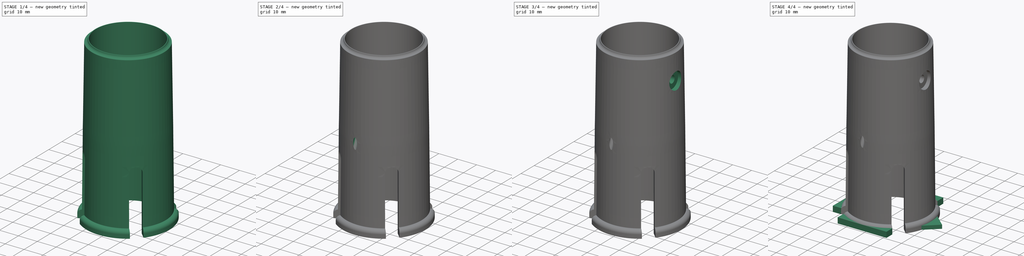
[diagram: build sequence overview — one tinted view per stage of 4, left to right]
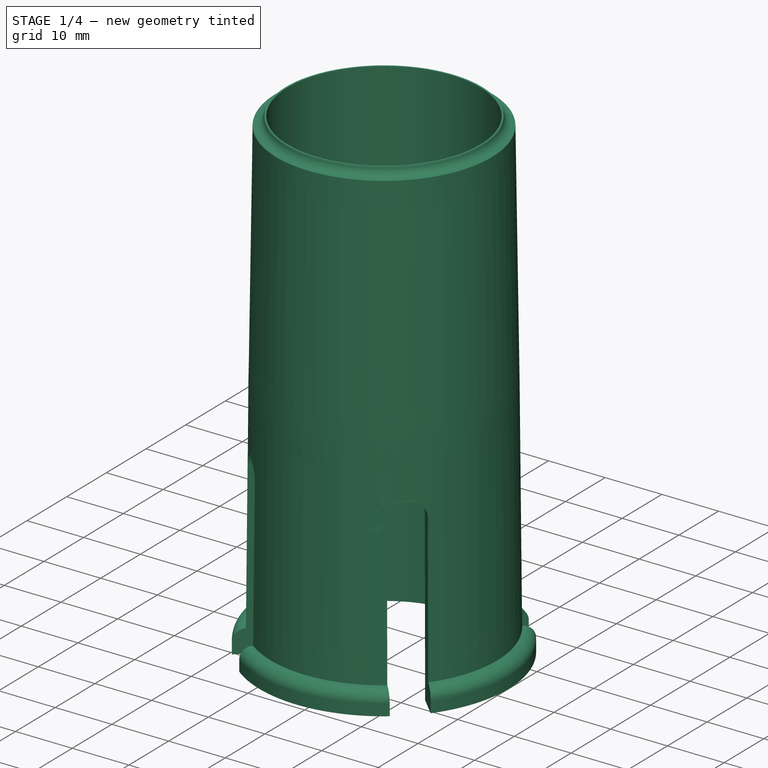
[diagram: stage 1 of 4 — iso view after this stage's code; geometry added in this stage tinted green]
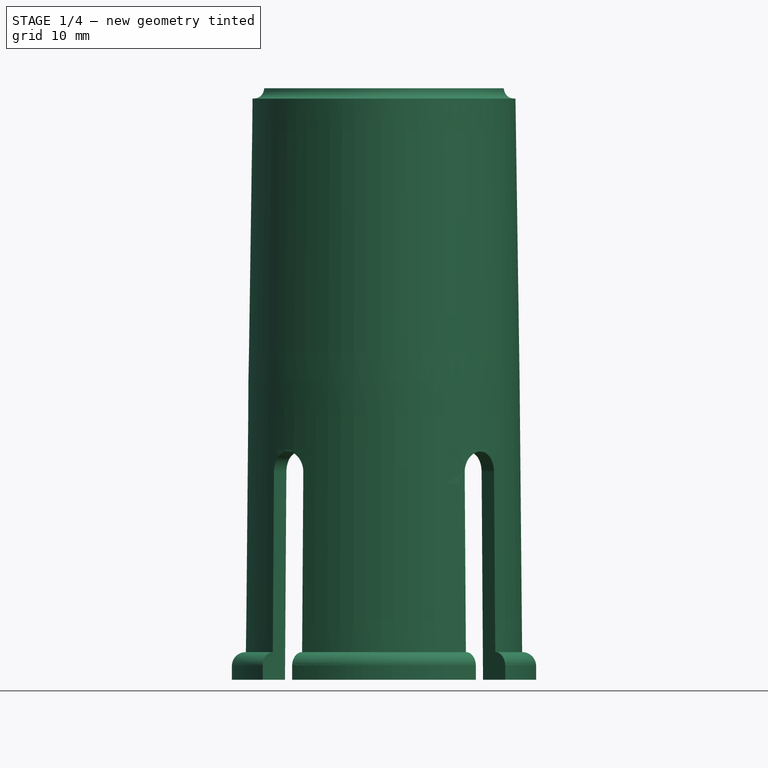
[diagram: stage 1 of 4 — front view after this stage's code; geometry added in this stage tinted green]
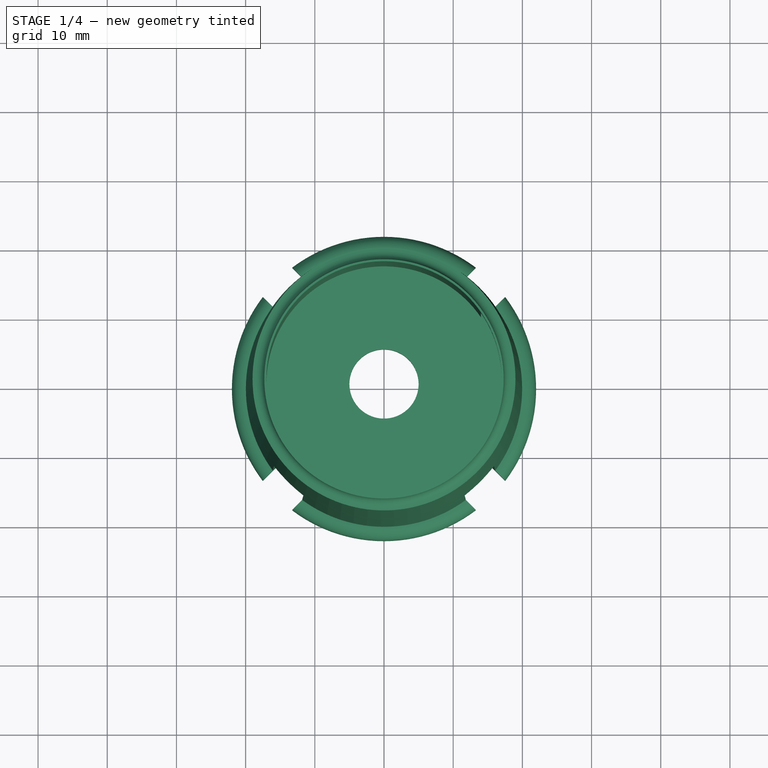
[diagram: stage 1 of 4 — top view after this stage's code; geometry added in this stage tinted green]
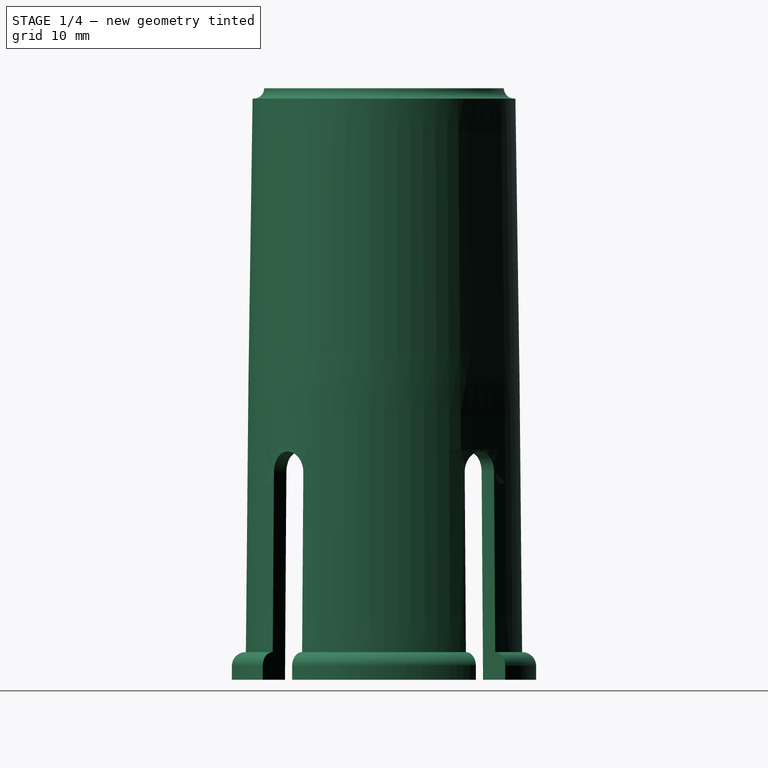
[diagram: stage 1 of 4 — right view after this stage's code; geometry added in this stage tinted green]
FCSTD DOCUMENT  (FreeCAD 1.0R38641 +678 (Git))
Label: 8-mast-mount
License: All rights reserved
LicenseURL: http://en.wikipedia.org/wiki/All_rights_reserved
objects: Sketcher::SketchObject×12, PartDesign::Pocket×7, PartDesign::Pad×4, PartDesign::Fillet×2, PartDesign::Plane×1, PartDesign::Revolution×1, PartDesign::Body×1
note: 68 computed .brp shape members not serialized (recipe doc carries the construction recipe); baked Part::Feature solids carry a one-line shape summary decoded from their .brp

FEATURE [PartDesign::Plane] DatumPlane014
  AttachmentOffset = pos=(0,0,43) rot=(0,0,1;0rad)
  AttachmentSupport = -> [XY_Plane028]
  Length = 63.2956
  MapMode = 5
  Placement = pos=(0,0,43) rot=(0,0,1;0rad)
  ResizeMode = 0
  Width = 60.2956
FEATURE [Sketcher::SketchObject] Sketch102
  ArcFitTolerance = 1e-06
  AttachmentSupport = -> [XZ_Plane028]
  FullyConstrained = true
  MakeInternals = false
  MapMode = 5
  Placement = pos=(0,0,0) rot=(1,0,0;1.5708rad)
  sketch-geometry (29):
    g0: LineSegment StartX=17.2 StartY=32 StartZ=0 EndX=17.5 EndY=0 EndZ=0
    g1: LineSegment StartX=19.6 StartY=43 StartZ=0 EndX=19.9628 EndY=3.99983 EndZ=0
    g2: LineSegment [constr] StartX=19.9628 StartY=3.99983 StartZ=0 EndX=20 EndY=0 EndZ=0
    g3: LineSegment StartX=5 StartY=40 StartZ=0 EndX=5 EndY=43 EndZ=0
    g4: LineSegment StartX=5 StartY=43 StartZ=0 EndX=17 EndY=43 EndZ=0
    g5: LineSegment [constr] StartX=17 StartY=43 StartZ=0 EndX=19.6 EndY=43 EndZ=0
    g6: LineSegment StartX=17 StartY=43 StartZ=0 EndX=17 EndY=83.9956 EndZ=0
    g7: LineSegment StartX=17.5 StartY=0 StartZ=0 EndX=20 EndY=0 EndZ=0
    g8: LineSegment [constr] StartX=17 StartY=83.9956 StartZ=0 EndX=19 EndY=83.9956 EndZ=0
    g9: LineSegment StartX=19.6 StartY=43 StartZ=0 EndX=19 EndY=83.9956 EndZ=0
    g10-g13: Circle [constr] x4 (B-spline internal-alignment scaffolding for g14; pole/knot coordinates omitted)
    g14: BSplineCurve PolesCount=4 KnotsCount=2 Degree=3 IsPeriodic=0
    g15: GeomPoint [constr] X=17.2 Y=32 Z=0
    g16: GeomPoint [constr] X=5 Y=40 Z=0
    g17: LineSegment StartX=17 StartY=83.9956 StartZ=0 EndX=17 EndY=85.4956 EndZ=0
    g18: LineSegment StartX=17 StartY=85.4956 StartZ=0 EndX=17.3 EndY=85.4956 EndZ=0
    g19: Circle [constr] CenterX=17.3 CenterY=85.4956 CenterZ=0 NormalX=0 NormalY=0 NormalZ=1 AngleXU=0 Radius=1
    g20: Circle [constr] CenterX=17.5 CenterY=83.9956 CenterZ=0 NormalX=0 NormalY=0 NormalZ=1 AngleXU=0 Radius=1
    g21: Circle [constr] CenterX=19 CenterY=83.9956 CenterZ=0 NormalX=0 NormalY=0 NormalZ=1 AngleXU=0 Radius=1
    g22: BSplineCurve PolesCount=3 KnotsCount=2 Degree=2 IsPeriodic=0
    g23: GeomPoint [constr] X=17.3 Y=85.4956 Z=0
    g24: GeomPoint [constr] X=19 Y=83.9956 Z=0
    g25: ArcOfCircle CenterX=19.9814 CenterY=1.99991 CenterZ=0 NormalX=0 NormalY=0 NormalZ=1 AngleXU=0 Radius=2 StartAngle=0 EndAngle=1.5801
    g26: LineSegment [constr] StartX=19.9814 StartY=1.99991 StartZ=0 EndX=21.9814 EndY=1.99991 EndZ=0
    g27: LineSegment StartX=20 StartY=0 StartZ=0 EndX=21.9814 EndY=0 EndZ=0
    g28: LineSegment StartX=21.9814 StartY=0 StartZ=0 EndX=21.9814 EndY=1.99991 EndZ=0
  constraints (71):
    c: PointOnObject(g2,g-1)
    c: Distance(g2,g-1) = 20
    c: PointOnObject(g0,g-1)
    c: Coincident(g1,g2)
    c: Coincident(g1,g25)
    c: Parallel(g1,g2)
    c: Vertical(g3)
    c: Coincident(g4,g3)
    c: Coincident(g5,g4)
    c: Coincident(g5,g1)
    c: Horizontal(g5)
    c: Horizontal(g4)
    c: Coincident(g6,g4)
    c: Vertical(g6)
    c: Distance(g9,g1) = 41
    c: Distance(g3,g3) = 3
    c: DistanceX(g-1,g3) = 5
    c: Distance(g3,g-1) = 40
    c: Coincident(g7,g0)
    c: Coincident(g7,g2)
    c: Coincident(g8,g6)
    c: Horizontal(g8)
    c: Coincident(g9,g1)
    c: Weight(g10) = 1
    c: Equal(g10,g11)
    c: Equal(g10,g12)
    c: Equal(g10,g13)
    c: InternalAlignment(g10-g13 -> g14) x4
    c: InternalAlignment(g15,g14)
    c: InternalAlignment(g16,g14)
    c: Coincident(g10,g0)
    c: Coincident(g13,g3)
    c: Distance(g14,g-1) = 32
    c: DistanceX(g12) = 10.886
    c: DistanceY(g12) = 39.5085
    c: DistanceX(g11) = 17
    c: DistanceY(g11) = 35.5277
    c: Vertical(g17)
    c: Coincident(g17,g6)
    c: Distance(g17,g17) = 1.5
    c: Coincident(g8,g9)
    c: Coincident(g18,g17)
    c: Horizontal(g18)
    c: Distance(g18,g18) = 0.3
    c: Weight(g19) = 1
    c: Equal(g19,g20)
    c: Equal(g19,g21)
    c: InternalAlignment(g19,g22)
    c: InternalAlignment(g20,g22)
    c: InternalAlignment(g21,g22)
    c: InternalAlignment(g23,g22)
    c: InternalAlignment(g24,g22)
    c: Coincident(g19,g18)
    c: Coincident(g21,g8)
    c: PointOnObject(g20,g8)
    c: Distance(g6,g20) = 0.5
    c: Symmetric(g2,g2,g26)
    c: Horizontal(g26)
    c: Coincident(g27,g2)
    c: Horizontal(g27)
    c: Coincident(g28,g27)
    c: Coincident(g28,g25)
    c: Vertical(g28)
    c: Coincident(g25,g26)
    c: Coincident(g26,g25)
    c: Radius(g25) = 2
    c: Distance(g14,g-2) = 17.2
    c: DistanceX(g8,g8) = 2
    c: Distance(g0,g-2) = 17.5
    c: Distance(g1,g-2) = 19.6
    c: Distance(g4,g-2) = 17
FEATURE [PartDesign::Revolution] Revolution020  label="Revolution-Main"
  Angle = 360
  Angle2 = 60
  Axis = (0,2e-16,1)
  Base = (0,0,0)
  Placement = pos=(0,0,0) rot=(1,0,0;1.5708rad)
  Profile = -> Sketch102
  ReferenceAxis = -> Sketch102 [V_Axis]
  Reversed = true
  Suppressed = false
  Type = 0
FEATURE [Sketcher::SketchObject] Sketch103
  ArcFitTolerance = 1e-06
  AttachmentOffset = pos=(0,0,0) rot=(0,1,0;0.785398rad)
  AttachmentSupport = -> [YZ_Plane028]
  FullyConstrained = true
  MakeInternals = false
  MapMode = 5
  Placement = pos=(0,0,0) rot=(0.281085,0.678598,0.678598;2.59356rad)
  sketch-geometry (7):
    g0: LineSegment StartX=-3 StartY=30 StartZ=0 EndX=-3 EndY=0 EndZ=0
    g1: LineSegment StartX=3 StartY=30 StartZ=0 EndX=3 EndY=0 EndZ=0
    g2: LineSegment StartX=-3 StartY=0 StartZ=0 EndX=0 EndY=0 EndZ=0
    g3: LineSegment StartX=0 StartY=0 StartZ=0 EndX=3 EndY=0 EndZ=0
    g4: ArcOfCircle CenterX=-1e-16 CenterY=30 CenterZ=0 NormalX=0 NormalY=0 NormalZ=1 AngleXU=0 Radius=3 StartAngle=3e-16 EndAngle=3.14159
    g5: LineSegment [constr] StartX=-1e-16 StartY=30 StartZ=0 EndX=3 EndY=30 EndZ=0
    g6: LineSegment [constr] StartX=-1e-16 StartY=30 StartZ=0 EndX=-3 EndY=30 EndZ=0
  constraints (19):
    c: PointOnObject(g0,g-1)
    c: Vertical(g0)
    c: PointOnObject(g1,g-1)
    c: Vertical(g1)
    c: DistanceY(g1,g1) = 30
    c: Coincident(g2,g0)
    c: Coincident(g2,g-1)
    c: Coincident(g3,g2)
    c: Coincident(g3,g1)
    c: Equal(g3,g2)
    c: Coincident(g4,g1)
    c: Coincident(g4,g0)
    c: Radius(g4) = 3
    c: Coincident(g5,g4)
    c: Coincident(g5,g1)
    c: Horizontal(g5)
    c: Coincident(g6,g4)
    c: Coincident(g6,g0)
    c: Horizontal(g6)
FEATURE [PartDesign::Pocket] Pocket023  label="Pocket-Arch-1"
  BaseFeature = -> Revolution020
  Direction = (-0.707107,-0.707107,0)
  Length = 5
  Length2 = 5
  Midplane = true
  Placement = pos=(0,0,0) rot=(1,0,0;1.5708rad)
  Profile = -> Sketch103
  ReferenceAxis = -> Sketch103 [N_Axis]
  Suppressed = false
  Type = 1
FEATURE [Sketcher::SketchObject] Sketch104
  ArcFitTolerance = 1e-06
  AttachmentOffset = pos=(0,0,0) rot=(0,1,0;0.785398rad)
  AttachmentSupport = -> [XZ_Plane028]
  FullyConstrained = true
  MakeInternals = false
  MapMode = 5
  Placement = pos=(0,0,0) rot=(0.862856,0.357407,0.357407;1.71777rad)
  expr: Constraints[12] = Sketch103.Constraints[12]
  expr: Constraints[4] = Sketch103.Constraints[4]
  sketch-geometry (7):
    g0: LineSegment StartX=-3 StartY=30 StartZ=0 EndX=-3 EndY=0 EndZ=0
    g1: LineSegment StartX=3 StartY=30 StartZ=0 EndX=3 EndY=0 EndZ=0
    g2: LineSegment StartX=-3 StartY=0 StartZ=0 EndX=0 EndY=0 EndZ=0
    g3: LineSegment StartX=0 StartY=0 StartZ=0 EndX=3 EndY=0 EndZ=0
    g4: ArcOfCircle CenterX=-1e-16 CenterY=30 CenterZ=0 NormalX=0 NormalY=0 NormalZ=1 AngleXU=0 Radius=3 StartAngle=3e-16 EndAngle=3.14159
    g5: LineSegment [constr] StartX=-1e-16 StartY=30 StartZ=0 EndX=3 EndY=30 EndZ=0
    g6: LineSegment [constr] StartX=-1e-16 StartY=30 StartZ=0 EndX=-3 EndY=30 EndZ=0
  constraints (19):
    c: PointOnObject(g0,g-1)
    c: Vertical(g0)
    c: PointOnObject(g1,g-1)
    c: Vertical(g1)
    c: DistanceY(g1,g1) = 30
    c: Coincident(g2,g0)
    c: Coincident(g2,g-1)
    c: Coincident(g3,g2)
    c: Coincident(g3,g1)
    c: Equal(g3,g2)
    c: Coincident(g4,g1)
    c: Coincident(g4,g0)
    c: Radius(g4) = 3
    c: Coincident(g5,g4)
    c: Coincident(g5,g1)
    c: Horizontal(g5)
    c: Coincident(g6,g4)
    c: Coincident(g6,g0)
    c: Horizontal(g6)
FEATURE [PartDesign::Pocket] Pocket024  label="Pocket-Arch-2"
  BaseFeature = -> Pocket023
  Direction = (-0.707107,0.707107,-1e-16)
  Length = 5
  Length2 = 5
  Midplane = true
  Placement = pos=(0,0,0) rot=(1,0,0;1.5708rad)
  Profile = -> Sketch104
  ReferenceAxis = -> Sketch104 [N_Axis]
  Suppressed = false
  Type = 1
FEATURE [Sketcher::SketchObject] Sketch141
  ArcFitTolerance = 1e-06
  AttachmentOffset = pos=(0,0,0) rot=(0,0,1;3.14159rad)
  AttachmentSupport = -> [DatumPlane014]
  FullyConstrained = true
  MakeInternals = false
  MapMode = 5
  Placement = pos=(0,0,43) rot=(0,0,1;3.14159rad)
  sketch-geometry (4):
    g0: LineSegment [constr] StartX=0 StartY=0 StartZ=0 EndX=-14 EndY=0 EndZ=0
    g1: LineSegment StartX=-14 StartY=0 StartZ=0 EndX=-14 EndY=12.8452 EndZ=0
    g2: LineSegment StartX=-14 StartY=0 StartZ=0 EndX=-14 EndY=-12.8452 EndZ=0
    g3: ArcOfCircle CenterX=0 CenterY=0 CenterZ=0 NormalX=0 NormalY=0 NormalZ=1 AngleXU=0 Radius=19 StartAngle=2.39918 EndAngle=3.884
  constraints (11):
    c: Distance(g0) = 14
    c: Coincident(g0,g-1)
    c: PointOnObject(g0,g-1)
    c: Coincident(g1,g0)
    c: Vertical(g1)
    c: Coincident(g2,g0)
    c: Vertical(g2)
    c: Coincident(g3,g0)
    c: Coincident(g3,g1)
    c: Coincident(g3,g2)
    c: Radius(g3) = 19
FEATURE [PartDesign::Pad] Pad  label="Pad-Keying"
  BaseFeature = -> Pocket024
  Direction = (0,0,1)
  Length = 36
  Length2 = 10
  Placement = pos=(0,0,0) rot=(1,0,0;1.5708rad)
  Profile = -> Sketch141
  ReferenceAxis = -> Sketch141 [N_Axis]
  Suppressed = false
  Type = 0
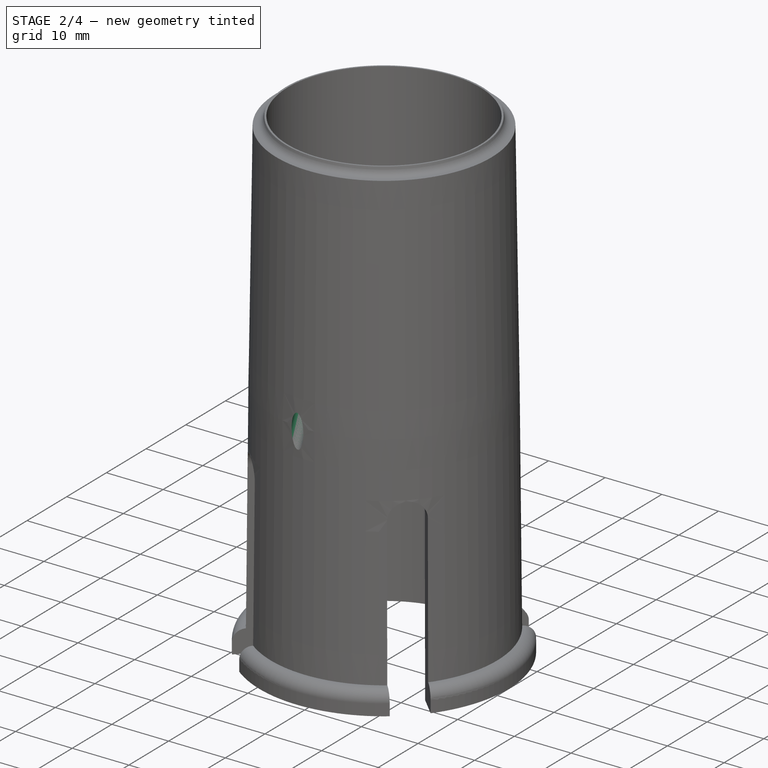
[diagram: stage 2 of 4 — iso view after this stage's code; geometry added in this stage tinted green]
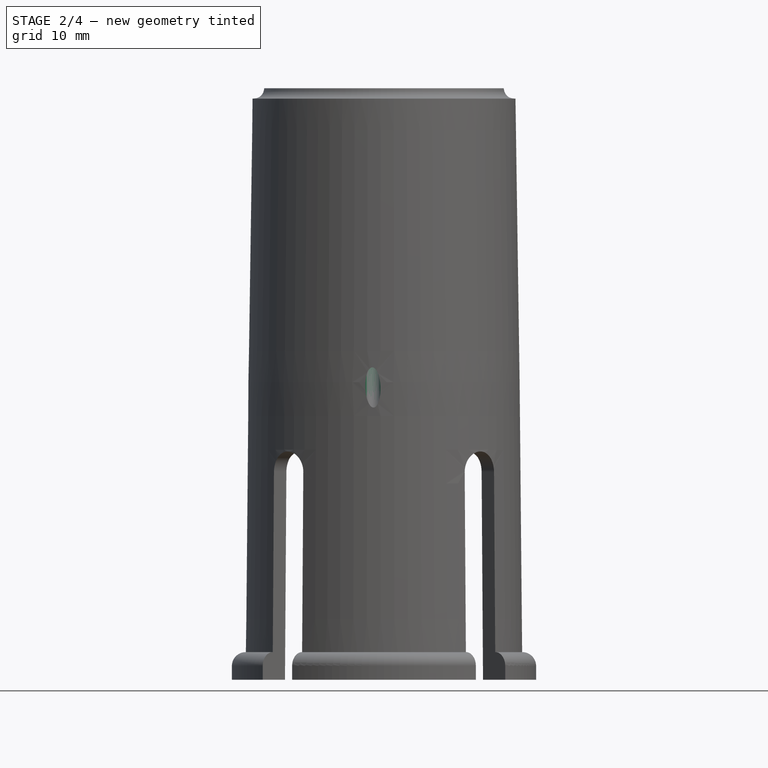
[diagram: stage 2 of 4 — front view after this stage's code; geometry added in this stage tinted green]
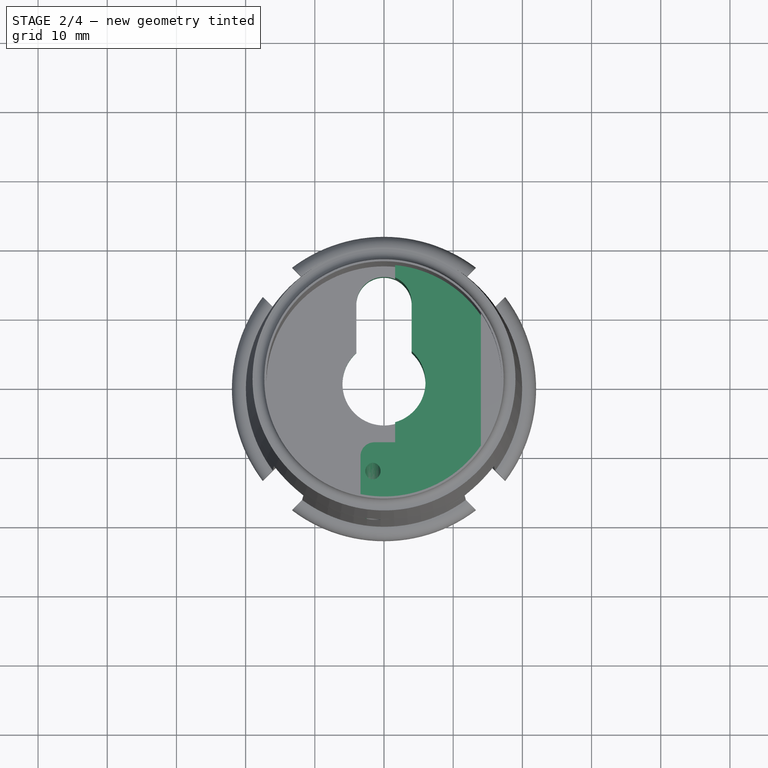
[diagram: stage 2 of 4 — top view after this stage's code; geometry added in this stage tinted green]
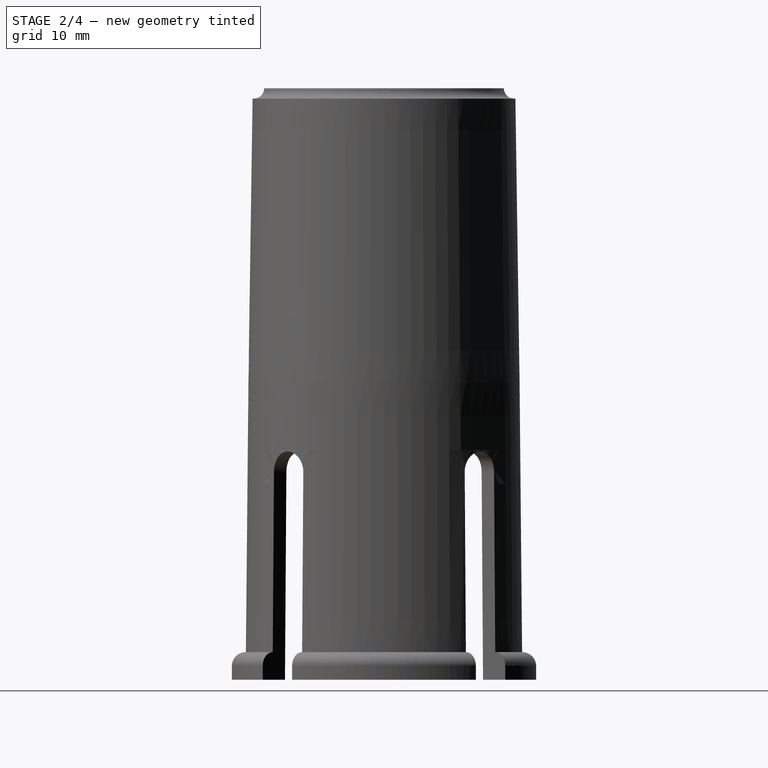
[diagram: stage 2 of 4 — right view after this stage's code; geometry added in this stage tinted green]
FEATURE [Sketcher::SketchObject] Sketch142
  ArcFitTolerance = 1e-06
  AttachmentOffset = pos=(0,0,0) rot=(0,0,1;3.14159rad)
  AttachmentSupport = -> [DatumPlane014]
  FullyConstrained = true
  MakeInternals = false
  MapMode = 5
  Placement = pos=(0,0,43) rot=(0,0,1;3.14159rad)
  sketch-geometry (6):
    g0: ArcOfCircle CenterX=0 CenterY=0 CenterZ=0 NormalX=0 NormalY=0 NormalZ=1 AngleXU=0 Radius=19 StartAngle=1.39088 EndAngle=4.62808
    g1: LineSegment StartX=-1.6 StartY=8.69331 StartZ=0 EndX=1.4 EndY=8.69331 EndZ=0
    g2: LineSegment StartX=3.4 StartY=10.6933 StartZ=0 EndX=3.4 EndY=18.6933 EndZ=0
    g3: LineSegment StartX=-1.6 StartY=8.69331 StartZ=0 EndX=-1.6 EndY=-18.9325 EndZ=0
    g4: ArcOfCircle CenterX=1.4 CenterY=10.6933 CenterZ=0 NormalX=0 NormalY=0 NormalZ=1 AngleXU=0 Radius=2 StartAngle=4.71239 EndAngle=6.28319
    g5: GeomPoint [constr] X=3.4 Y=8.69331 Z=0
  constraints (16):
    c: Coincident(g0,g-1)
    c: Radius(g0) = 19
    c: Coincident(g1,g3)
    c: Horizontal(g1)
    c: Vertical(g2)
    c: Coincident(g0,g2)
    c: Distance(g1,g5) = 5
    c: DistanceY(g5,g2) = 10
    c: Vertical(g3)
    c: Distance(g3,g-2) = 1.6
    c: PointOnObject(g5,g1)
    c: PointOnObject(g5,g2)
    c: Tangent(g1,g4) = -1.5708
    c: Tangent(g2,g4) = -1.5708
    c: Radius(g4) = 2
    c: Coincident(g3,g0)
FEATURE [PartDesign::Pad] Pad017  label="Pad-Internal filling"
  BaseFeature = -> Pad
  Direction = (0,0,1)
  Length = 15
  Length2 = 10
  Placement = pos=(0,0,0) rot=(1,0,0;1.5708rad)
  Profile = -> Sketch142
  ReferenceAxis = -> Sketch142 [N_Axis]
  Suppressed = false
  Type = 0
FEATURE [Sketcher::SketchObject] Sketch146
  ArcFitTolerance = 1e-06
  AttachmentOffset = pos=(-1.6,-12,17) rot=(1,0,0;-0.401426rad)
  AttachmentSupport = -> [DatumPlane014]
  FullyConstrained = true
  MakeInternals = false
  MapMode = 5
  Placement = pos=(-1.6,-12,60) rot=(1,0,0;5.88176rad)
  sketch-geometry (1):
    g0: Circle CenterX=0 CenterY=0 CenterZ=0 NormalX=0 NormalY=0 NormalZ=1 AngleXU=0 Radius=1.1
  constraints (2):
    c: Diameter(g0) = 2.2
    c: Coincident(g0,g-1)
FEATURE [PartDesign::Pocket] Pocket047  label="Pocket-Switch Conduit"
  BaseFeature = -> Pad017
  Direction = (0,-0.390731,-0.920505)
  Length = 5
  Length2 = 5
  Placement = pos=(0,0,0) rot=(1,0,0;1.5708rad)
  Profile = -> Sketch146
  ReferenceAxis = -> Sketch146 [N_Axis]
  Suppressed = false
  Type = 1
FEATURE [Sketcher::SketchObject] Sketch147
  ArcFitTolerance = 1e-06
  AttachmentSupport = -> [DatumPlane014]
  FullyConstrained = true
  MakeInternals = false
  MapMode = 5
  Placement = pos=(0,0,43) rot=(0,0,1;0rad)
  sketch-geometry (6):
    g0: ArcOfCircle CenterX=0 CenterY=0 CenterZ=0 NormalX=0 NormalY=0 NormalZ=1 AngleXU=0 Radius=6 StartAngle=2.30052 EndAngle=7.12425
    g1: LineSegment StartX=-4 StartY=4.47214 StartZ=0 EndX=-4 EndY=11.4721 EndZ=0
    g2: LineSegment StartX=4 StartY=4.47214 StartZ=0 EndX=4 EndY=11.4721 EndZ=0
    g3: ArcOfCircle CenterX=0 CenterY=11.4721 CenterZ=0 NormalX=0 NormalY=0 NormalZ=1 AngleXU=0 Radius=4 StartAngle=0 EndAngle=3.14159
    g4: LineSegment [constr] StartX=-4 StartY=11.4721 StartZ=0 EndX=0 EndY=11.4721 EndZ=0
    g5: LineSegment [constr] StartX=0 StartY=11.4721 StartZ=0 EndX=4 EndY=11.4721 EndZ=0
  constraints (17):
    c: Radius(g0) = 6
    c: Coincident(g1,g0)
    c: Vertical(g1)
    c: Coincident(g2,g0)
    c: Vertical(g2)
    c: Coincident(g3,g2)
    c: Coincident(g4,g3)
    c: Coincident(g4,g3)
    c: Horizontal(g4)
    c: Coincident(g5,g3)
    c: Coincident(g5,g2)
    c: Horizontal(g5)
    c: Coincident(g1,g3)
    c: Coincident(g-1,g0)
    c: DistanceY(g1,g1) = 7
    c: DistanceX(g1,g2) = 8
    c: PointOnObject(g3,g-2)
FEATURE [PartDesign::Pocket] Pocket048  label="Pocket-Wiring/USB passthrough"
  BaseFeature = -> Pocket047
  Direction = (0,0,-1)
  Length = 32
  Length2 = 5
  Midplane = true
  Placement = pos=(0,0,0) rot=(1,0,0;1.5708rad)
  Profile = -> Sketch147
  ReferenceAxis = -> Sketch147 [N_Axis]
  Suppressed = false
  Type = 0
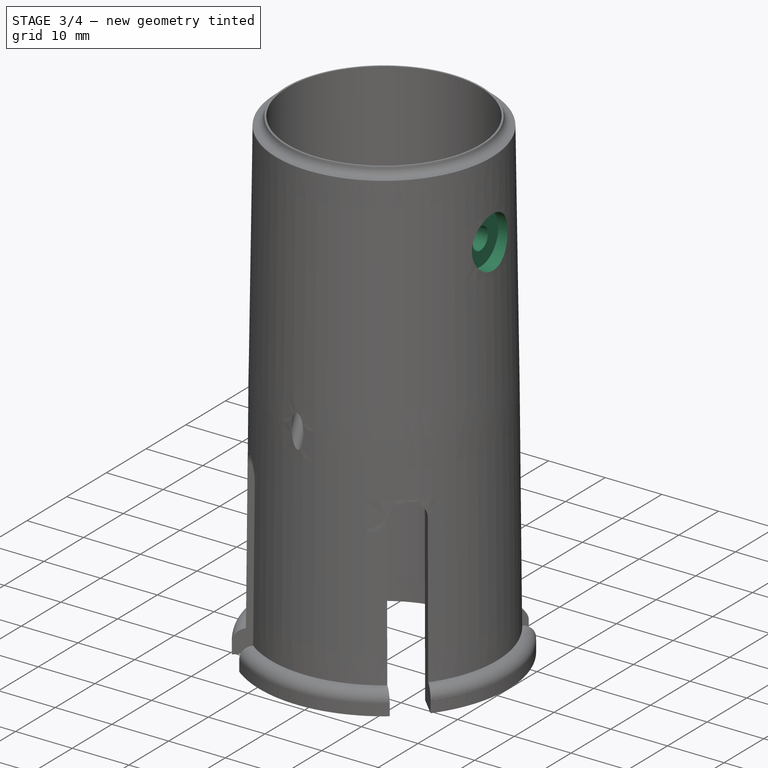
[diagram: stage 3 of 4 — iso view after this stage's code; geometry added in this stage tinted green]
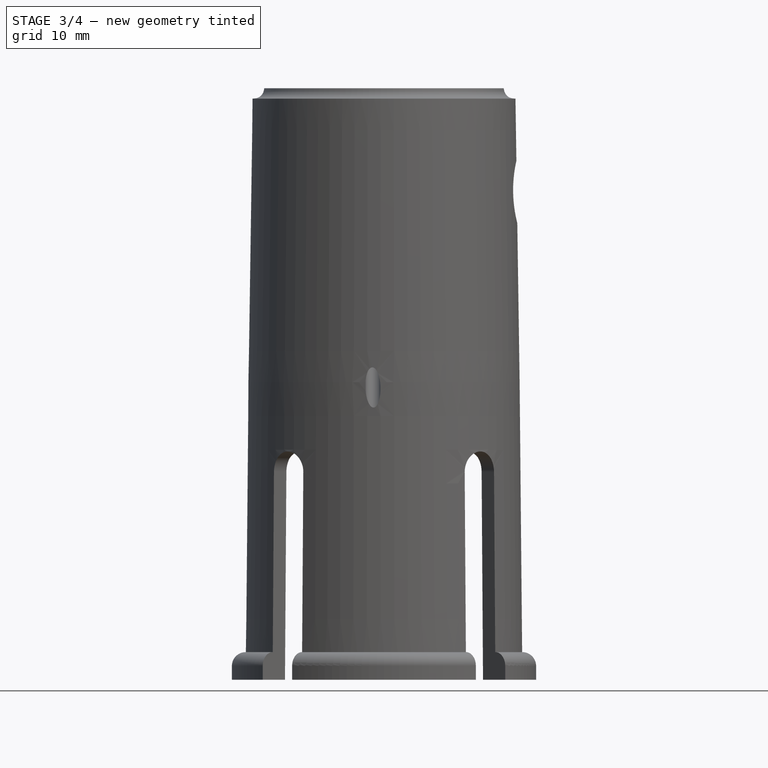
[diagram: stage 3 of 4 — front view after this stage's code; geometry added in this stage tinted green]
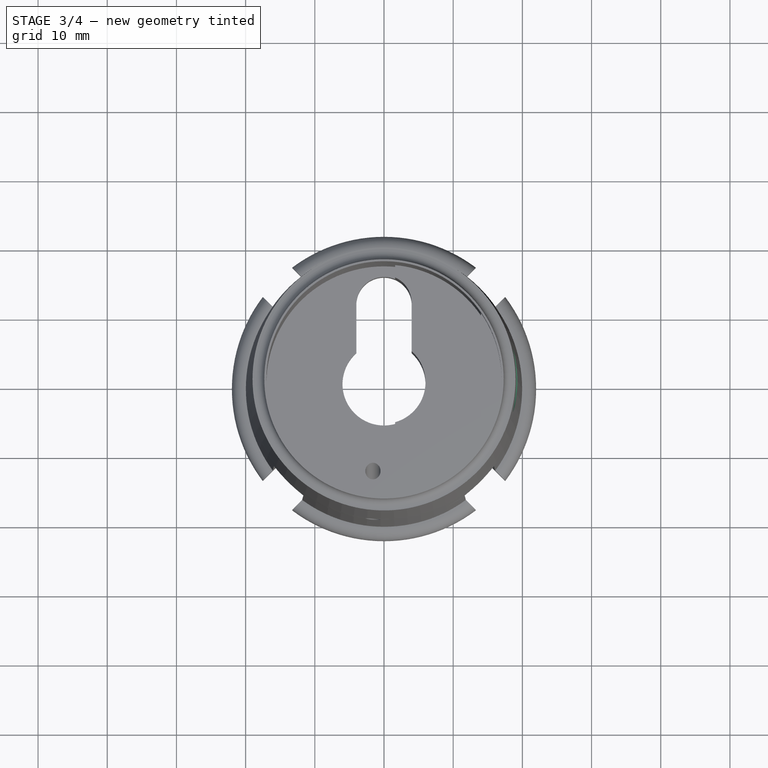
[diagram: stage 3 of 4 — top view after this stage's code; geometry added in this stage tinted green]
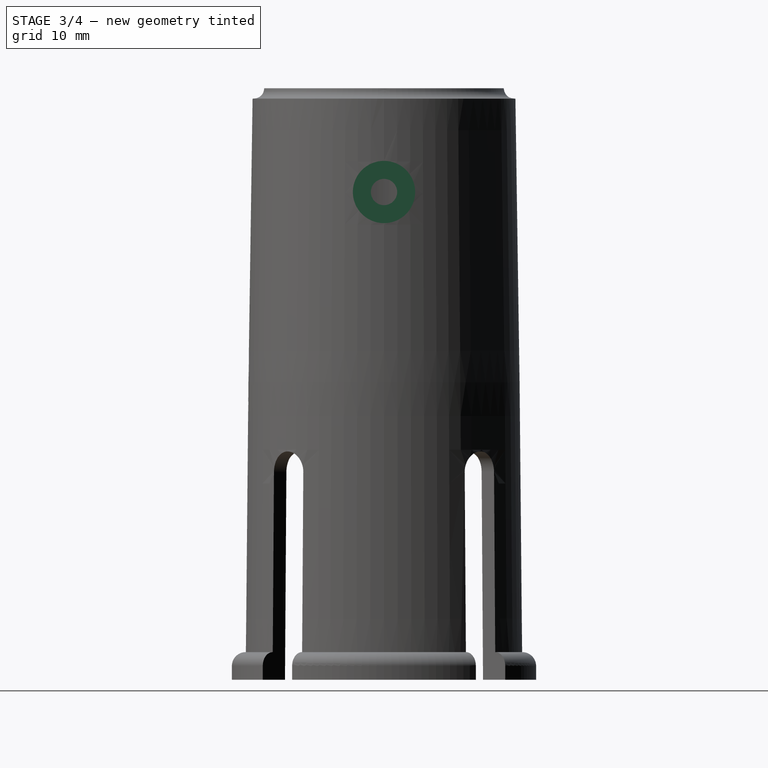
[diagram: stage 3 of 4 — right view after this stage's code; geometry added in this stage tinted green]
FEATURE [Sketcher::SketchObject] Sketch148
  ArcFitTolerance = 1e-06
  AttachmentOffset = pos=(0,0,20) rot=(0,0,1;0rad)
  AttachmentSupport = -> [YZ_Plane028]
  ExternalGeometry = -> [Pocket048]
  FullyConstrained = true
  MakeInternals = false
  MapMode = 5
  Placement = pos=(20,0,0) rot=(0.57735,0.57735,0.57735;2.0944rad)
  sketch-geometry (1):
    g0: Circle CenterX=0 CenterY=70.4956 CenterZ=0 NormalX=0 NormalY=0 NormalZ=1 AngleXU=0 Radius=1.9
  constraints (3):
    c: Diameter(g0) = 3.8
    c: PointOnObject(g0,g-2)
    c: Distance(g0,g-3) = 15
FEATURE [PartDesign::Pocket] Pocket049  label="Pocket-Screw hole"
  BaseFeature = -> Pocket048
  Direction = (-1,0,0)
  Length = 10
  Length2 = 5
  Placement = pos=(0,0,0) rot=(1,0,0;1.5708rad)
  Profile = -> Sketch148
  ReferenceAxis = -> Sketch148 [N_Axis]
  Suppressed = false
  Type = 0
FEATURE [Sketcher::SketchObject] Sketch149
  ArcFitTolerance = 1e-06
  AttachmentOffset = pos=(0,0,20) rot=(0,0,1;0rad)
  AttachmentSupport = -> [YZ_Plane028]
  ExternalGeometry = -> [Pocket049]
  FullyConstrained = true
  MakeInternals = false
  MapMode = 5
  Placement = pos=(20,0,0) rot=(0.57735,0.57735,0.57735;2.0944rad)
  sketch-geometry (1):
    g0: Circle CenterX=0 CenterY=70.4956 CenterZ=0 NormalX=0 NormalY=0 NormalZ=1 AngleXU=0 Radius=4.5
  constraints (3):
    c: Diameter(g0) = 9
    c: PointOnObject(g0,g-2)
    c: Distance(g0,g-3) = 15
FEATURE [PartDesign::Pocket] Pocket050  label="Pocket- Screw flat base"
  BaseFeature = -> Pocket049
  Direction = (-1,0,0)
  Length = 3
  Length2 = 5
  Placement = pos=(0,0,0) rot=(1,0,0;1.5708rad)
  Profile = -> Sketch149
  ReferenceAxis = -> Sketch149 [N_Axis]
  Suppressed = false
  Type = 0
FEATURE [Sketcher::SketchObject] Sketch150
  ArcFitTolerance = 1e-06
  AttachmentOffset = pos=(0,0,0) rot=(0,1,0;5.49779rad)
  AttachmentSupport = -> [YZ_Plane028]
  FullyConstrained = true
  MakeInternals = false
  MapMode = 5
  Placement = pos=(0,0,0) rot=(-0.862856,-0.357407,-0.357407;4.56541rad)
  sketch-geometry (7):
    g0: LineSegment StartX=-3 StartY=35 StartZ=0 EndX=-3 EndY=0 EndZ=0
    g1: LineSegment StartX=3 StartY=35 StartZ=0 EndX=3 EndY=0 EndZ=0
    g2: LineSegment StartX=-3 StartY=0 StartZ=0 EndX=0 EndY=0 EndZ=0
    g3: LineSegment StartX=0 StartY=0 StartZ=0 EndX=3 EndY=0 EndZ=0
    g4: ArcOfCircle CenterX=1e-16 CenterY=35 CenterZ=0 NormalX=0 NormalY=0 NormalZ=1 AngleXU=0 Radius=3 StartAngle=-9e-16 EndAngle=3.14159
    g5: LineSegment [constr] StartX=1e-16 StartY=35 StartZ=0 EndX=3 EndY=35 EndZ=0
    g6: LineSegment [constr] StartX=1e-16 StartY=35 StartZ=0 EndX=-3 EndY=35 EndZ=0
  constraints (19):
    c: PointOnObject(g0,g-1)
    c: Vertical(g0)
    c: PointOnObject(g1,g-1)
    c: Vertical(g1)
    c: DistanceY(g1,g1) = 35
    c: Coincident(g2,g0)
    c: Coincident(g2,g-1)
    c: Coincident(g3,g2)
    c: Coincident(g3,g1)
    c: Equal(g3,g2)
    c: Coincident(g4,g1)
    c: Coincident(g4,g0)
    c: Radius(g4) = 3
    c: Coincident(g5,g4)
    c: Coincident(g5,g1)
    c: Horizontal(g5)
    c: Coincident(g6,g4)
    c: Coincident(g6,g0)
    c: Horizontal(g6)
FEATURE [PartDesign::Pocket] Pocket051  label="Pocket-High arch"
  BaseFeature = -> Pocket050
  Direction = (-0.707107,0.707107,0)
  Length = 5
  Length2 = 5
  Placement = pos=(0,0,0) rot=(1,0,0;1.5708rad)
  Profile = -> Sketch150
  ReferenceAxis = -> Sketch150 [N_Axis]
  Suppressed = false
  Type = 1
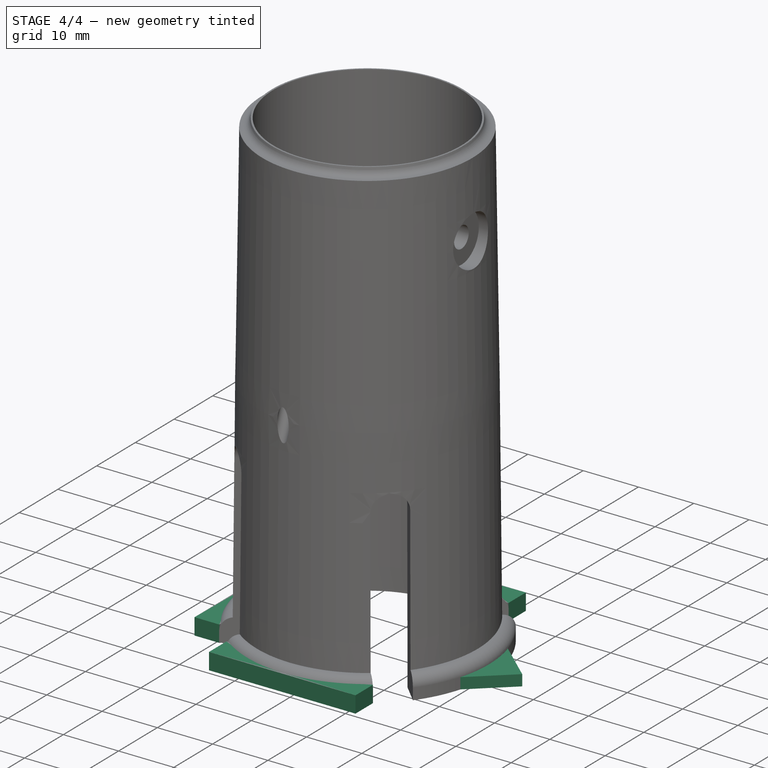
[diagram: stage 4 of 4 — iso view after this stage's code; geometry added in this stage tinted green]
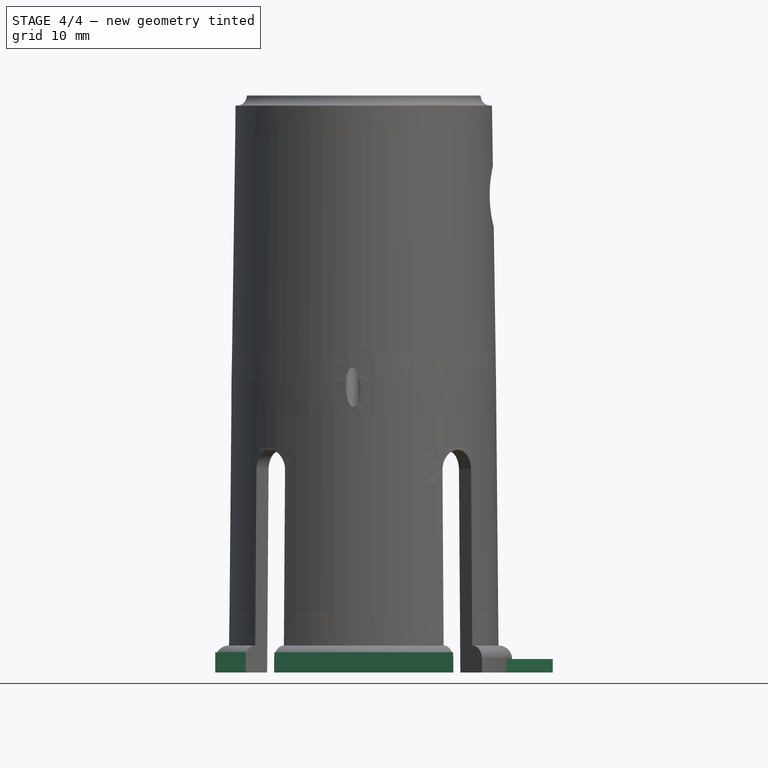
[diagram: stage 4 of 4 — front view after this stage's code; geometry added in this stage tinted green]
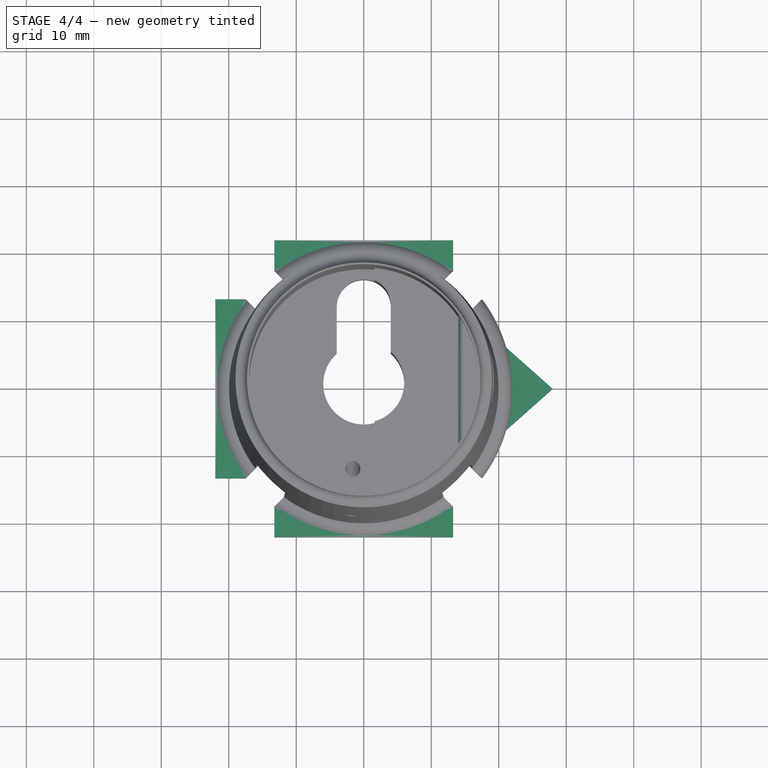
[diagram: stage 4 of 4 — top view after this stage's code; geometry added in this stage tinted green]
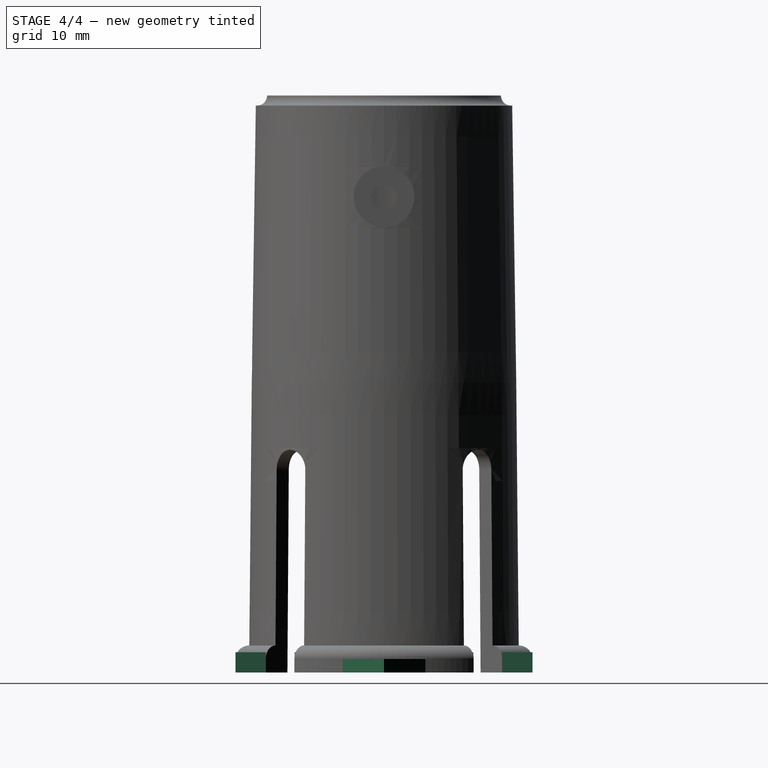
[diagram: stage 4 of 4 — right view after this stage's code; geometry added in this stage tinted green]
FEATURE [PartDesign::Fillet] Fillet
  Base = -> Pocket051 [Edge176,Edge171]
  BaseFeature = -> Pocket051
  Placement = pos=(0,0,0) rot=(1,0,0;1.5708rad)
  Radius = 1
  SupportTransform = false
  Suppressed = false
  UseAllEdges = false
FEATURE [PartDesign::Fillet] Fillet001
  Base = -> Fillet [Edge54,Edge65,Edge60,Edge59,Edge57,Edge53]
  BaseFeature = -> Fillet
  Placement = pos=(0,0,0) rot=(1,0,0;1.5708rad)
  Radius = 2
  SupportTransform = false
  Suppressed = false
  UseAllEdges = false
FEATURE [Sketcher::SketchObject] Sketch153
  ArcFitTolerance = 1e-06
  AttachmentSupport = -> [XY_Plane028]
  FullyConstrained = true
  MakeInternals = false
  MapMode = 5
  sketch-geometry (4):
    g0: LineSegment StartX=19 StartY=0 StartZ=0 EndX=19 EndY=8 EndZ=0
    g1: LineSegment StartX=19 StartY=0 StartZ=0 EndX=19 EndY=-8 EndZ=0
    g2: LineSegment StartX=19 StartY=8 StartZ=0 EndX=28 EndY=0 EndZ=0
    g3: LineSegment StartX=28 StartY=0 StartZ=0 EndX=19 EndY=-8 EndZ=0
  constraints (11):
    c: PointOnObject(g0,g-1)
    c: Equal(g1,g0)
    c: Vertical(g0)
    c: Tangent(g1,g0) = 1.5708
    c: Coincident(g2,g0)
    c: PointOnObject(g2,g-1)
    c: Coincident(g3,g2)
    c: Coincident(g3,g1)
    c: Distance(g0,g2) = 9
    c: DistanceY(g1,g0) = 16
    c: DistanceX(g-1,g0) = 19
FEATURE [PartDesign::Pad] Pad019  label="Pad-North arrow"
  BaseFeature = -> Fillet001
  Direction = (0,0,1)
  Length = 2
  Length2 = 10
  Placement = pos=(0,0,0) rot=(1,0,0;1.5708rad)
  Profile = -> Sketch153
  ReferenceAxis = -> Sketch153 [N_Axis]
  Suppressed = false
  Type = 0
FEATURE [Sketcher::SketchObject] Sketch154
  ArcFitTolerance = 1e-06
  AttachmentSupport = -> [XY_Plane028]
  FullyConstrained = true
  MakeInternals = false
  MapMode = 5
  sketch-geometry (18):
    g0: LineSegment StartX=-13.25 StartY=17.5 StartZ=0 EndX=13.25 EndY=17.5 EndZ=0
    g1: LineSegment StartX=13.25 StartY=17.5 StartZ=0 EndX=13.25 EndY=22 EndZ=0
    g2: LineSegment StartX=13.25 StartY=22 StartZ=0 EndX=-13.25 EndY=22 EndZ=0
    g3: LineSegment StartX=-13.25 StartY=22 StartZ=0 EndX=-13.25 EndY=17.5 EndZ=0
    g4: GeomPoint [constr] X=0 Y=19.75 Z=0
    g5: LineSegment StartX=-13.25 StartY=-22 StartZ=0 EndX=13.25 EndY=-22 EndZ=0
    g6: LineSegment StartX=13.25 StartY=-22 StartZ=0 EndX=13.25 EndY=-17.5 EndZ=0
    g7: LineSegment StartX=13.25 StartY=-17.5 StartZ=0 EndX=-13.25 EndY=-17.5 EndZ=0
    g8: LineSegment StartX=-13.25 StartY=-17.5 StartZ=0 EndX=-13.25 EndY=-22 EndZ=0
    g9: GeomPoint [constr] X=0 Y=-19.75 Z=0
    g10: LineSegment [constr] StartX=1.88e-14 StartY=17.5 StartZ=0 EndX=0 EndY=0 EndZ=0
    g11: LineSegment [constr] StartX=0 StartY=0 StartZ=0 EndX=1.05e-14 EndY=-17.5 EndZ=0
    g12: LineSegment StartX=-22 StartY=-13.25 StartZ=0 EndX=-17.5 EndY=-13.25 EndZ=0
    g13: LineSegment StartX=-17.5 StartY=-13.25 StartZ=0 EndX=-17.5 EndY=13.25 EndZ=0
    g14: LineSegment StartX=-17.5 StartY=13.25 StartZ=0 EndX=-22 EndY=13.25 EndZ=0
    g15: LineSegment StartX=-22 StartY=13.25 StartZ=0 EndX=-22 EndY=-13.25 EndZ=0
    g16: GeomPoint [constr] X=-19.75 Y=0 Z=0
    g17: LineSegment [constr] StartX=-17.5 StartY=1.16e-14 StartZ=0 EndX=0 EndY=0 EndZ=0
  constraints (45):
    c: Coincident(g0,g1)
    c: Coincident(g1,g2)
    c: Coincident(g2,g3)
    c: Coincident(g3,g0)
    c: Horizontal(g0)
    c: Horizontal(g2)
    c: Vertical(g1)
    c: Vertical(g3)
    c: Symmetric(g2,g0,g4)
    c: PointOnObject(g4,g-2)
    c: Distance(g0,g0) = 26.5
    c: Distance(g0,g-1) = 17.5
    c: Distance(g1,g1) = 4.5
    c: Coincident(g5,g6)
    c: Coincident(g6,g7)
    c: Coincident(g7,g8)
    c: Coincident(g8,g5)
    c: Horizontal(g5)
    c: Horizontal(g7)
    c: Vertical(g6)
    c: Vertical(g8)
    c: Symmetric(g7,g5,g9)
    c: PointOnObject(g9,g-2)
    c: Equal(g1,g6)
    c: Equal(g2,g7)
    c: Symmetric(g0,g0,g10)
    c: Coincident(g10,g-1)
    c: Coincident(g11,g10)
    c: Symmetric(g7,g7,g11)
    c: Equal(g11,g10)
    c: Coincident(g12,g13)
    c: Coincident(g13,g14)
    c: Coincident(g14,g15)
    c: Coincident(g15,g12)
    c: Horizontal(g12)
    c: Horizontal(g14)
    c: Vertical(g13)
    c: Vertical(g15)
    c: Symmetric(g14,g12,g16)
    c: PointOnObject(g16,g-1)
    c: Equal(g2,g15)
    c: Equal(g14,g3)
    c: Symmetric(g13,g13,g17)
    c: Coincident(g17,g10)
    c: Equal(g17,g10)
FEATURE [PartDesign::Pad] Pad020  label="Pad-Cardinal sections "
  BaseFeature = -> Pad019
  Direction = (0,0,1)
  Length = 3
  Length2 = 10
  Placement = pos=(0,0,0) rot=(1,0,0;1.5708rad)
  Profile = -> Sketch154
  ReferenceAxis = -> Sketch154 [N_Axis]
  Suppressed = false
  Type = 0
FEATURE [PartDesign::Body] Body021  label="8-mast-mount"
  AllowCompound = false
  Group = -> [Sketch102,Revolution020,Sketch103,Pocket023,Sketch104,Pocket024,DatumPlane014,Sketch141,Pad,Sketch142,Pad017,Sketch146,Pocket047,Sketch147,Pocket048,Sketch148,Pocket049,Sketch149,Pocket050,Sketch150,Pocket051,Fillet,Fillet001,Sketch153,Pad019,Sketch154,Pad020]
  Origin = -> Origin028
  Placement = pos=(0,0,-275.8) rot=(0,0,1;3.14159rad)
  Tip = -> Pad020
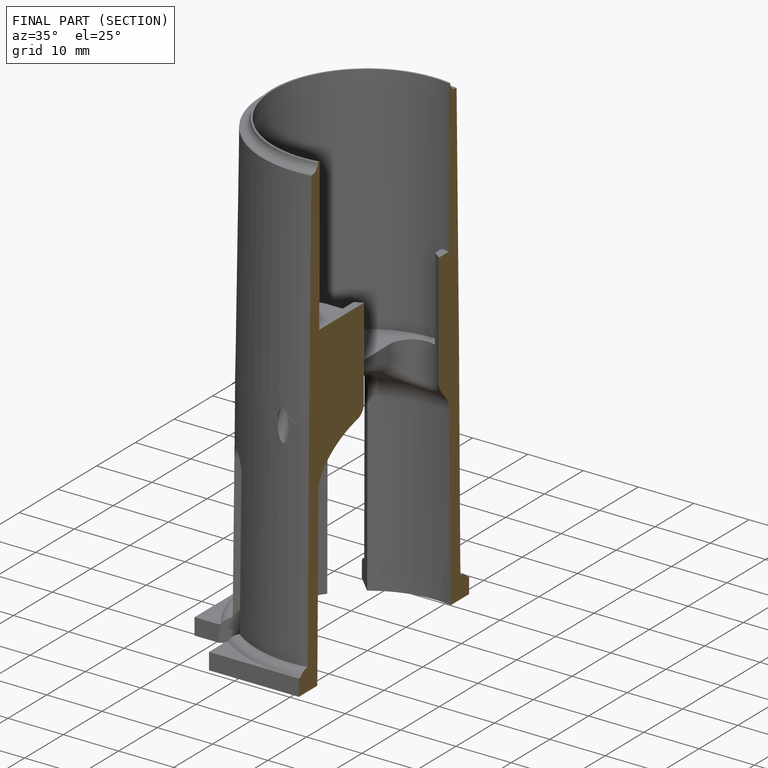
[diagram: finished part — half-section view (interior)]
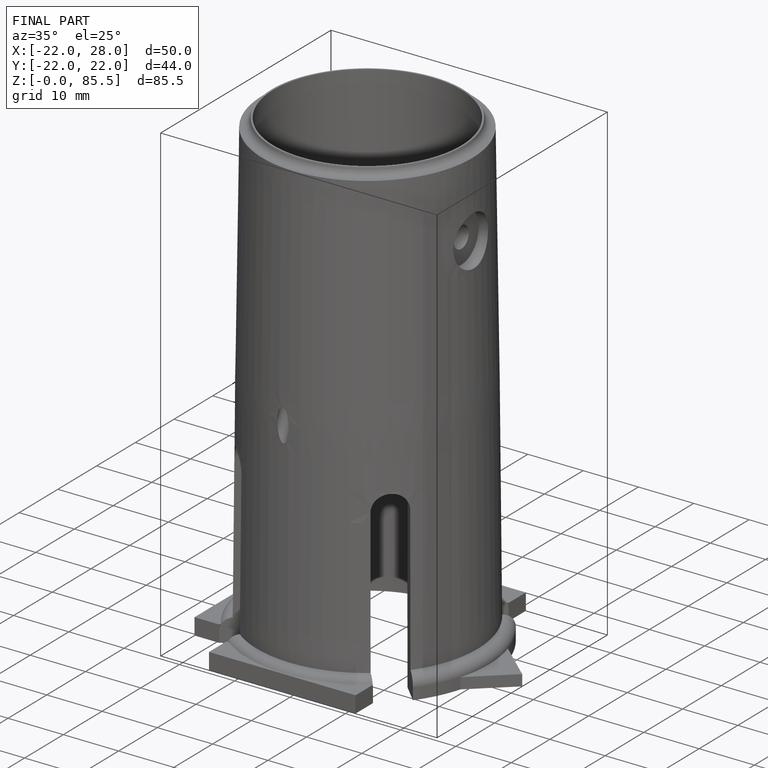
[diagram: finished part — iso view with bounding-box wireframe]
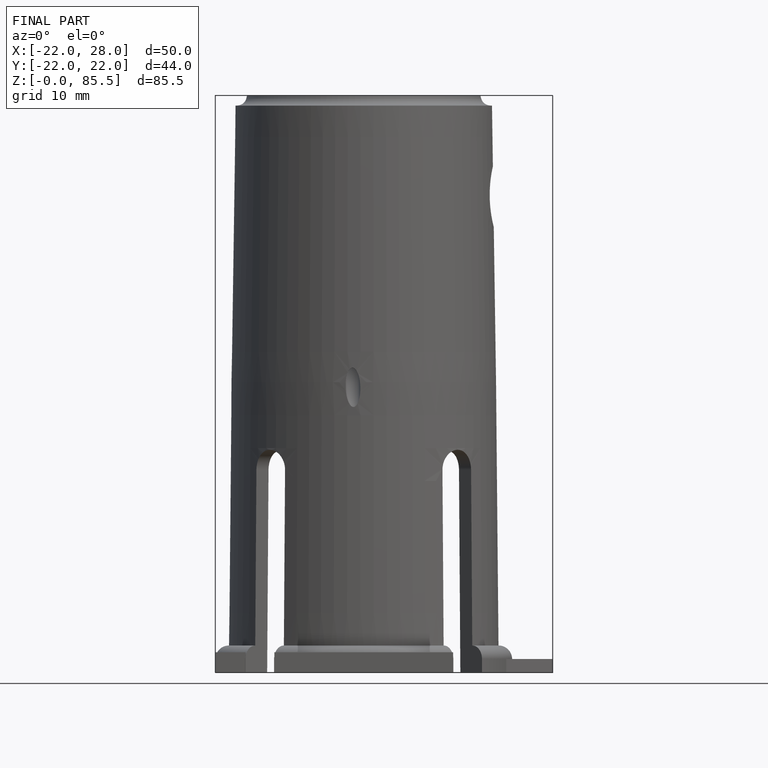
[diagram: finished part — front view with bounding-box wireframe]
